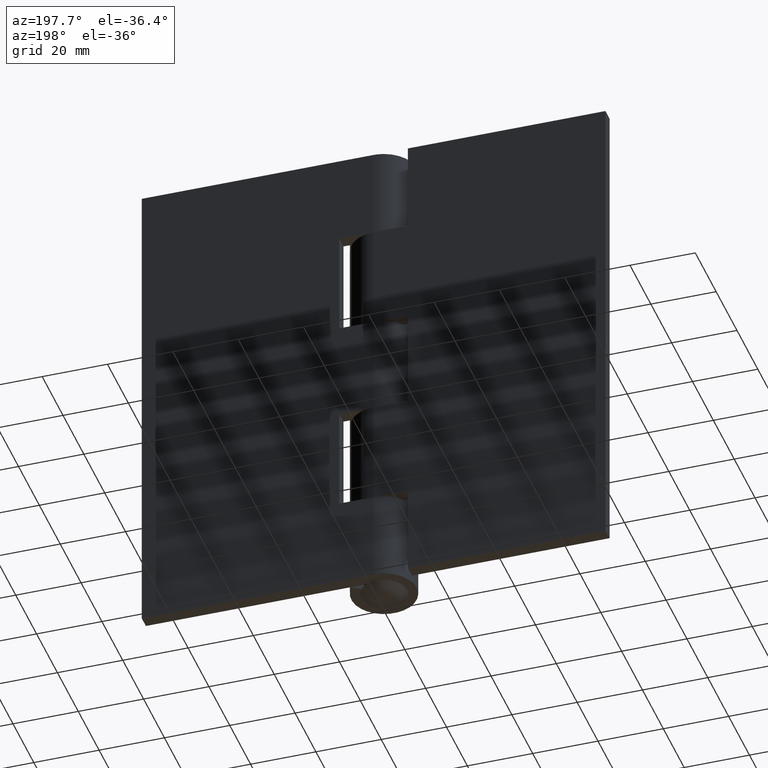
[diagram: clean part render]
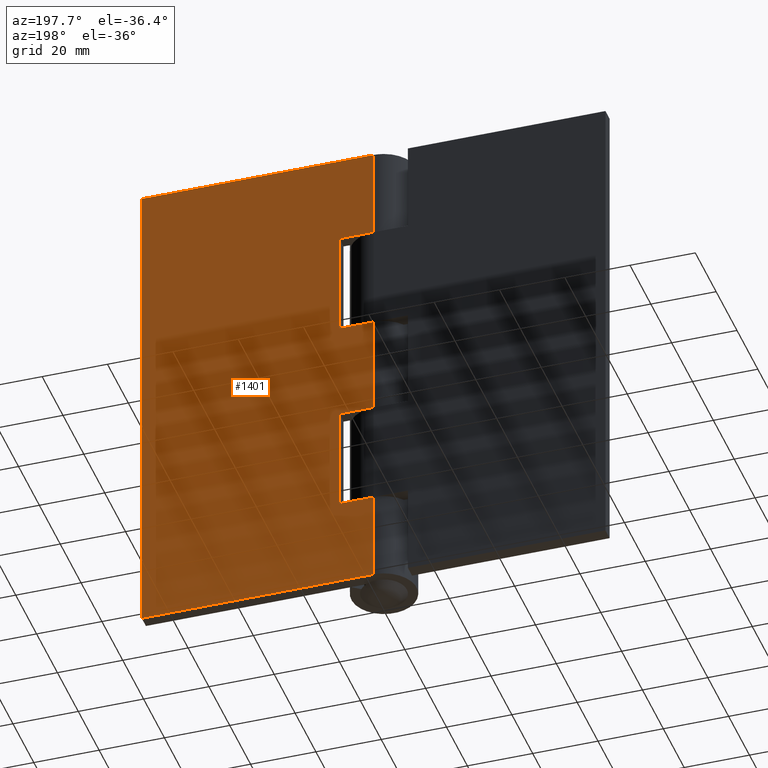
[diagram: same view with one face highlighted and labeled with its STEP entity id]
A machine part, auxiliary view. The second image highlights one B-rep face of the part: STEP entity #1401.
In plain terms, the highlighted face is a freeform B-spline surface patch.
Its self-contained STEP definition (entity closure, byte-faithful):
#768=CARTESIAN_POINT('',(0.0,10.0,60.500000000000000));
#769=VERTEX_POINT('',#768);
#789=CARTESIAN_POINT('',(10.500000000000000,10.0,60.500000000000000));
#790=VERTEX_POINT('',#789);
#791=CARTESIAN_POINT('',(10.500000000000000,10.0,60.500000000000000));
#792=CARTESIAN_POINT('',(0.0,10.0,60.500000000000000));
#793=QUASI_UNIFORM_CURVE('',1,(#791,#792),.UNSPECIFIED.,.F.,.U.);
#794=EDGE_CURVE('',#790,#769,#793,.T.);
#852=CARTESIAN_POINT('',(10.500000000000000,10.0,28.0));
#853=VERTEX_POINT('',#852);
#854=CARTESIAN_POINT('',(10.500000000000000,10.0,28.0));
#855=CARTESIAN_POINT('',(10.500000000000000,10.0,60.500000000000000));
#856=QUASI_UNIFORM_CURVE('',1,(#854,#855),.UNSPECIFIED.,.F.,.U.);
#857=EDGE_CURVE('',#853,#790,#856,.T.);
#872=CARTESIAN_POINT('',(0.0,10.0,28.0));
#873=VERTEX_POINT('',#872);
#929=CARTESIAN_POINT('',(0.0,10.0,28.0));
#930=CARTESIAN_POINT('',(10.500000000000000,10.0,28.0));
#931=QUASI_UNIFORM_CURVE('',1,(#929,#930),.UNSPECIFIED.,.F.,.U.);
#932=EDGE_CURVE('',#873,#853,#931,.T.);
#942=CARTESIAN_POINT('',(0.0,10.0,91.499984999999896));
#943=VERTEX_POINT('',#942);
#1000=CARTESIAN_POINT('',(10.500000000000000,10.0,91.499984999999896));
#1001=VERTEX_POINT('',#1000);
#1007=CARTESIAN_POINT('',(10.500000000000000,10.0,91.499984999999896));
#1008=CARTESIAN_POINT('',(0.0,10.0,91.499984999999896));
#1009=QUASI_UNIFORM_CURVE('',1,(#1007,#1008),.UNSPECIFIED.,.F.,.U.);
#1010=EDGE_CURVE('',#1001,#943,#1009,.T.);
#1027=CARTESIAN_POINT('',(10.500000000000000,10.0,123.999985000000000));
#1028=VERTEX_POINT('',#1027);
#1034=CARTESIAN_POINT('',(10.500000000000000,10.0,123.999985000000000));
#1035=CARTESIAN_POINT('',(10.500000000000000,10.0,91.499984999999896));
#1036=QUASI_UNIFORM_CURVE('',1,(#1034,#1035),.UNSPECIFIED.,.F.,.U.);
#1037=EDGE_CURVE('',#1028,#1001,#1036,.T.);
#1050=CARTESIAN_POINT('',(0.0,10.0,123.999985000000000));
#1051=VERTEX_POINT('',#1050);
#1071=CARTESIAN_POINT('',(0.0,10.0,123.999985000000000));
#1072=CARTESIAN_POINT('',(10.500000000000000,10.0,123.999985000000000));
#1073=QUASI_UNIFORM_CURVE('',1,(#1071,#1072),.UNSPECIFIED.,.F.,.U.);
#1074=EDGE_CURVE('',#1051,#1028,#1073,.T.);
#1120=CARTESIAN_POINT('',(0.0,10.0,0.0));
#1121=VERTEX_POINT('',#1120);
#1141=CARTESIAN_POINT('',(71.0,10.0,0.0));
#1142=VERTEX_POINT('',#1141);
#1143=CARTESIAN_POINT('',(0.0,10.0,0.0));
#1144=CARTESIAN_POINT('',(71.0,10.0,0.0));
#1145=QUASI_UNIFORM_CURVE('',1,(#1143,#1144),.UNSPECIFIED.,.F.,.U.);
#1146=EDGE_CURVE('',#1121,#1142,#1145,.T.);
#1198=CARTESIAN_POINT('',(0.0,10.0,151.999985000000010));
#1199=VERTEX_POINT('',#1198);
#1254=CARTESIAN_POINT('',(71.0,10.0,151.999985000000010));
#1255=VERTEX_POINT('',#1254);
#1261=CARTESIAN_POINT('',(0.0,10.0,151.999985000000010));
#1262=CARTESIAN_POINT('',(71.0,10.0,151.999985000000010));
#1263=QUASI_UNIFORM_CURVE('',1,(#1261,#1262),.UNSPECIFIED.,.F.,.U.);
#1264=EDGE_CURVE('',#1199,#1255,#1263,.T.);
#1360=CARTESIAN_POINT('',(71.0,10.0,151.999985000000010));
#1361=CARTESIAN_POINT('',(71.0,10.0,0.0));
#1362=QUASI_UNIFORM_CURVE('',1,(#1360,#1361),.UNSPECIFIED.,.F.,.U.);
#1363=EDGE_CURVE('',#1255,#1142,#1362,.T.);
#1370=CARTESIAN_POINT('',(-3.546449862388220,10.0,-7.592398956144530));
#1371=CARTESIAN_POINT('',(-3.546449862388220,10.0,159.592388033101910));
#1372=CARTESIAN_POINT('',(74.546451766756618,10.0,-7.592398956144530));
#1373=CARTESIAN_POINT('',(74.546451766756618,10.0,159.592388033101910));
#1374=B_SPLINE_SURFACE_WITH_KNOTS('',1,1,((#1370,#1372),(#1371,#1373)),.UNSPECIFIED.,.F.,.F.,.U.,(2,2),(2,2),(0.0,167.184786989246390),(0.0,78.092901629144833),.UNSPECIFIED.);
#1375=ORIENTED_EDGE('',*,*,#932,.T.);
#1376=ORIENTED_EDGE('',*,*,#857,.T.);
#1377=ORIENTED_EDGE('',*,*,#794,.T.);
#1378=CARTESIAN_POINT('',(0.0,10.0,91.499984999999896));
#1379=CARTESIAN_POINT('',(0.0,10.0,60.500000000000000));
#1380=QUASI_UNIFORM_CURVE('',1,(#1378,#1379),.UNSPECIFIED.,.F.,.U.);
#1381=EDGE_CURVE('',#943,#769,#1380,.T.);
#1382=ORIENTED_EDGE('',*,*,#1381,.F.);
#1383=ORIENTED_EDGE('',*,*,#1010,.F.);
#1384=ORIENTED_EDGE('',*,*,#1037,.F.);
#1385=ORIENTED_EDGE('',*,*,#1074,.F.);
#1386=CARTESIAN_POINT('',(0.0,10.0,151.999985000000010));
#1387=CARTESIAN_POINT('',(0.0,10.0,123.999985000000000));
#1388=QUASI_UNIFORM_CURVE('',1,(#1386,#1387),.UNSPECIFIED.,.F.,.U.);
#1389=EDGE_CURVE('',#1199,#1051,#1388,.T.);
#1390=ORIENTED_EDGE('',*,*,#1389,.F.);
#1391=ORIENTED_EDGE('',*,*,#1264,.T.);
#1392=ORIENTED_EDGE('',*,*,#1363,.T.);
#1393=ORIENTED_EDGE('',*,*,#1146,.F.);
#1394=CARTESIAN_POINT('',(0.0,10.0,28.0));
#1395=CARTESIAN_POINT('',(0.0,10.0,0.0));
#1396=QUASI_UNIFORM_CURVE('',1,(#1394,#1395),.UNSPECIFIED.,.F.,.U.);
#1397=EDGE_CURVE('',#873,#1121,#1396,.T.);
#1398=ORIENTED_EDGE('',*,*,#1397,.F.);
#1399=EDGE_LOOP('',(#1375,#1376,#1377,#1382,#1383,#1384,#1385,#1390,#1391,#1392,#1393,#1398));
#1400=FACE_OUTER_BOUND('',#1399,.T.);
#1401=ADVANCED_FACE('',(#1400),#1374,.T.);